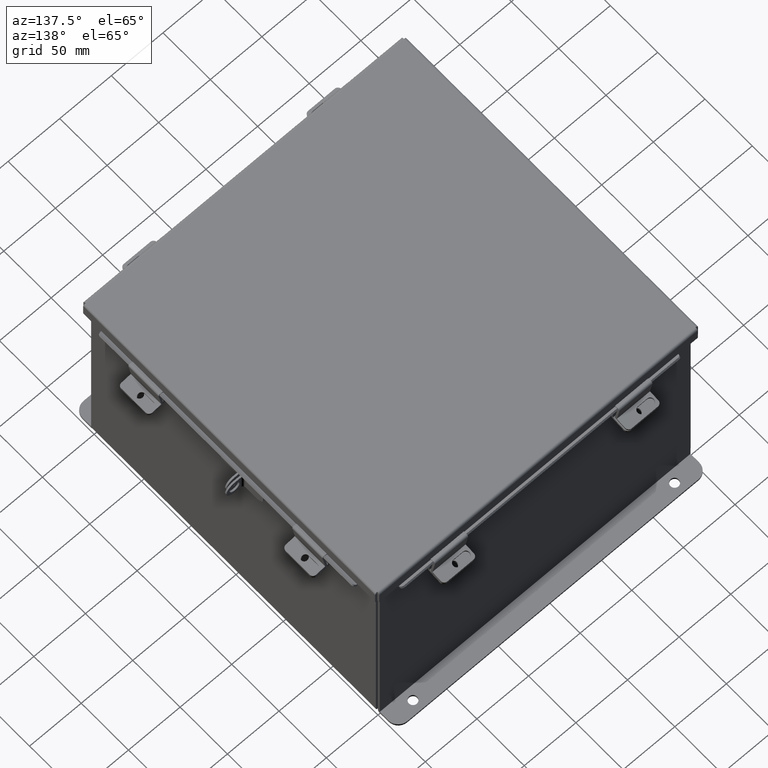
[diagram: clean part render]
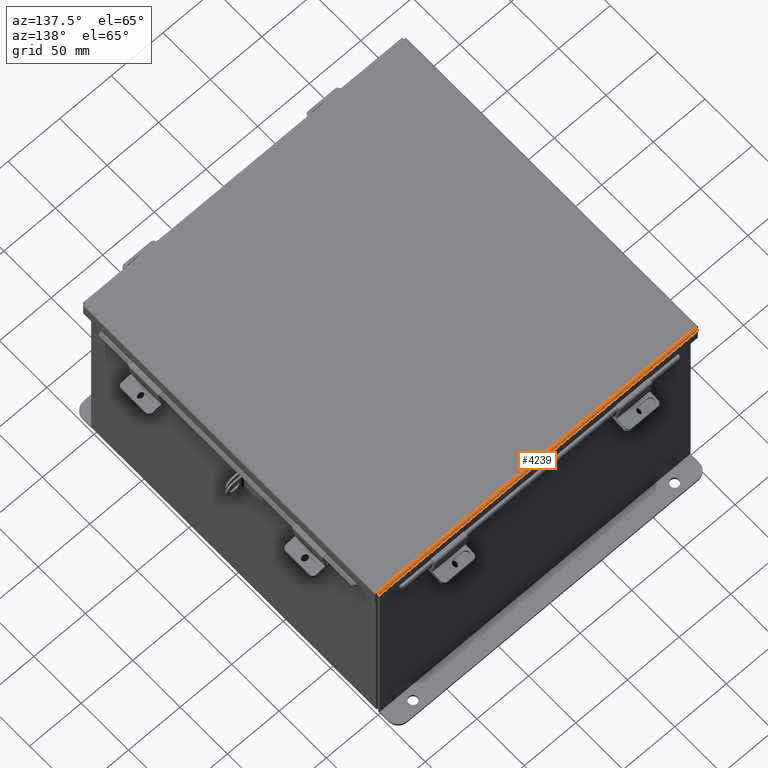
[diagram: same view with one face highlighted and labeled with its STEP entity id]
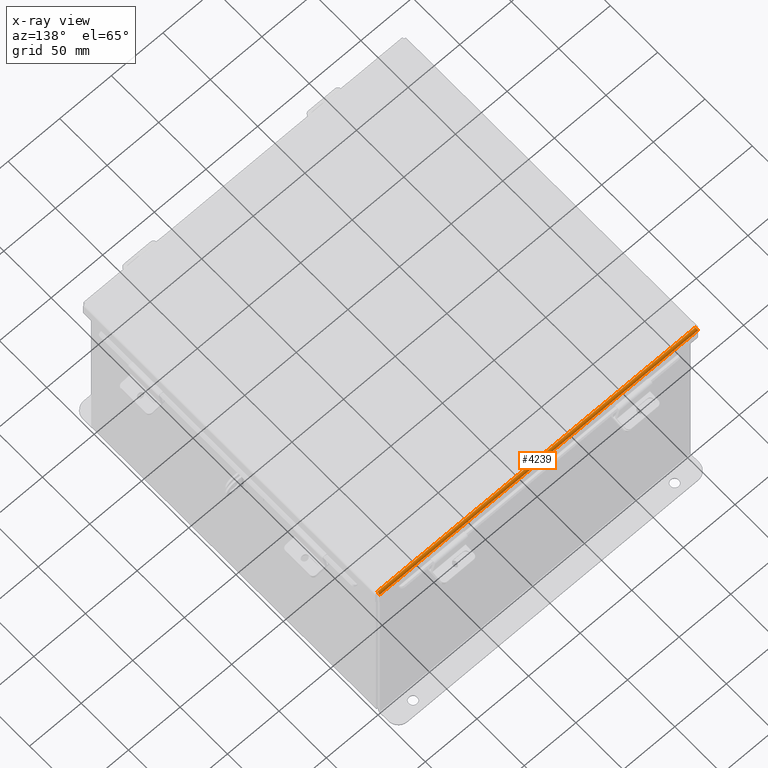
[diagram: x-ray of the same camera — body ghosted, the highlighted face saturated]
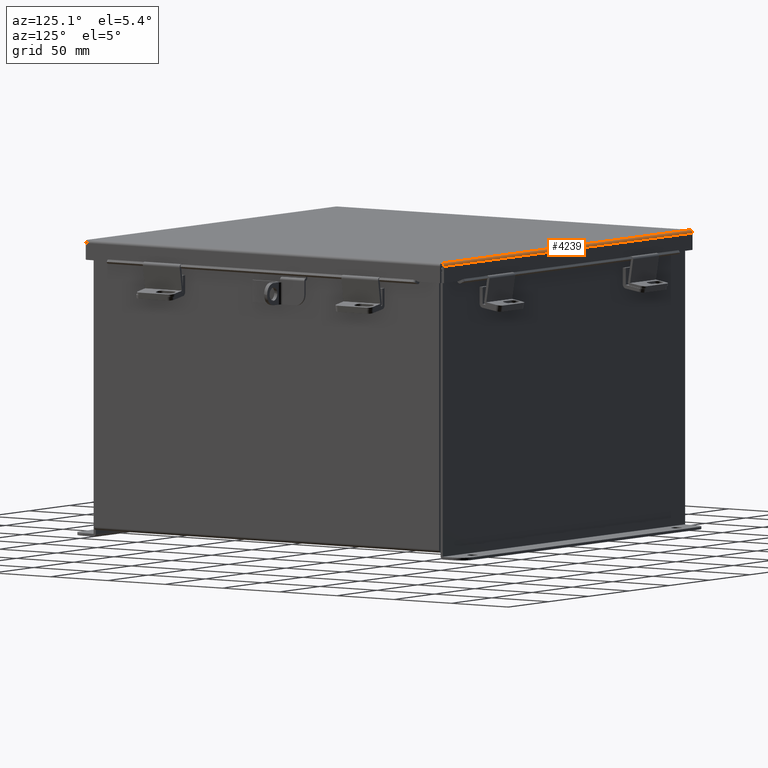
[diagram: same view with one face highlighted and labeled with its STEP entity id]
A machine part, auxiliary view. The second image highlights one B-rep face of the part: STEP entity #4239.
The next image is the same camera in x-ray: the body ghosted, the highlighted face saturated — about 0% of this face is hidden behind the body in this view.
A second angle (auxiliary view) of the same face is appended — the face is thin or edge-on in the first view.
In plain terms, the highlighted cylindrical surface (edge-blend (fillet) strip) has radius 2.2276 mm, axis along (1, -0, 0).
Its self-contained STEP definition (entity closure, byte-faithful):
#188 = LINE ( 'NONE', #15504, #17628 ) ;
#626 = FACE_OUTER_BOUND ( 'NONE', #4209, .T. ) ;
#961 = B_SPLINE_CURVE_WITH_KNOTS ( 'NONE', 3,
 ( #9638, #1384, #2795, #12368, #4202, #13769, #5585, #15143, #6957, #16551 ),
 .UNSPECIFIED., .F., .F.,
 ( 4, 2, 2, 2, 4 ),
 ( 0.0000000000000000000, 0.2500000000000000000, 0.5000000000000000000, 0.7500000000000000000, 1.000000000000000000 ),
 .UNSPECIFIED. ) ;
#1058 = AXIS2_PLACEMENT_3D ( 'NONE', #3737, #11926, #9184 ) ;
#1384 = CARTESIAN_POINT ( 'NONE',  ( -6.073984854505791700, 6.156249999999999100, 0.001520096845007091700 ) ) ;
#1416 = CARTESIAN_POINT ( 'NONE',  ( 6.068550000000000100, 6.068550000000000100, -0.07469999999999993300 ) ) ;
#1502 = CARTESIAN_POINT ( 'NONE',  ( 6.068550000000000100, 6.068550000000000100, -0.07469999999999993300 ) ) ;
#2201 = EDGE_CURVE ( 'NONE', #16120, #10522, #10353, .T. ) ;
#2308 = B_SPLINE_CURVE_WITH_KNOTS ( 'NONE', 3,
 ( #1502, #11106, #2885, #12472, #4315, #13858, #5673, #15257, #7054, #16630 ),
 .UNSPECIFIED., .F., .F.,
 ( 4, 2, 2, 2, 4 ),
 ( 0.0000000000000000000, 0.2500000000000000000, 0.5000000000000000000, 0.7500000000000000000, 1.000000000000000000 ),
 .UNSPECIFIED. ) ;
#2340 = CARTESIAN_POINT ( 'NONE',  ( -6.068550000000000100, 6.068550000000000100, -0.07469999999999993300 ) ) ;
#2795 = CARTESIAN_POINT ( 'NONE',  ( -6.073490776823450500, 6.153967403743811500, -0.009955289458309056500 ) ) ;
#2885 = CARTESIAN_POINT ( 'NONE',  ( 6.069538155364688800, 6.091505289458310400, -0.07241740374381121200 ) ) ;
#3194 = DIRECTION ( 'NONE',  ( 1.000000000000000000, 0.0000000000000000000, 0.0000000000000000000 ) ) ;
#3737 = CARTESIAN_POINT ( 'NONE',  ( -6.074478932188137400, 6.068550000000000100, 0.01300000000000016400 ) ) ;
#4202 = CARTESIAN_POINT ( 'NONE',  ( -6.072008543776413500, 6.138680782078321100, -0.04089574734180010500 ) ) ;
#4209 = EDGE_LOOP ( 'NONE', ( #6839, #14101, #5906, #17085 ) ) ;
#4239 = ADVANCED_FACE ( 'NONE', ( #626 ), #7533, .T. ) ;
#4315 = CARTESIAN_POINT ( 'NONE',  ( 6.071020388411724000, 6.122445747341799900, -0.05713078207832041800 ) ) ;
#4450 = VERTEX_POINT ( 'NONE', #1416 ) ;
#5516 = EDGE_CURVE ( 'NONE', #4450, #10522, #2308, .T. ) ;
#5585 = CARTESIAN_POINT ( 'NONE',  ( -6.070526310729379200, 6.112717384578528100, -0.06363106625866837800 ) ) ;
#5673 = CARTESIAN_POINT ( 'NONE',  ( 6.072502621458759200, 6.145181066258667900, -0.03116738457852800300 ) ) ;
#5906 = ORIENTED_EDGE ( 'NONE', *, *, #2201, .T. ) ;
#6760 = VECTOR ( 'NONE', #11840, 39.37007874015748100 ) ;
#6839 = ORIENTED_EDGE ( 'NONE', *, *, #9747, .F. ) ;
#6957 = CARTESIAN_POINT ( 'NONE',  ( -6.069044077682344900, 6.080029903154993100, -0.07469999999999994700 ) ) ;
#7054 = CARTESIAN_POINT ( 'NONE',  ( 6.073984854505791700, 6.156250000000000000, 0.001520096845007091700 ) ) ;
#7533 = CYLINDRICAL_SURFACE ( 'NONE', #1058, 0.08770000000000026400 ) ;
#7588 = EDGE_CURVE ( 'NONE', #16120, #10001, #961, .T. ) ;
#9184 = DIRECTION ( 'NONE',  ( 0.0000000000000000000, 1.000000000000000000, -4.477801015840783100E-015 ) ) ;
#9638 = CARTESIAN_POINT ( 'NONE',  ( -6.074478932188137400, 6.156250000000000000, 0.01299999999999978100 ) ) ;
#9747 = EDGE_CURVE ( 'NONE', #10001, #4450, #188, .T. ) ;
#10001 = VERTEX_POINT ( 'NONE', #2340 ) ;
#10353 = LINE ( 'NONE', #11947, #6760 ) ;
#10522 = VERTEX_POINT ( 'NONE', #14443 ) ;
#11106 = CARTESIAN_POINT ( 'NONE',  ( 6.069044077682344900, 6.080029903154992300, -0.07469999999999994700 ) ) ;
#11840 = DIRECTION ( 'NONE',  ( 1.000000000000000000, -2.487713722829918300E-032, 1.089533968265403200E-046 ) ) ;
#11926 = DIRECTION ( 'NONE',  ( -1.000000000000000000, -0.0000000000000000000, -0.0000000000000000000 ) ) ;
#11947 = CARTESIAN_POINT ( 'NONE',  ( 6.156249999999998200, 6.156250000000000000, 0.01299999999999978100 ) ) ;
#12368 = CARTESIAN_POINT ( 'NONE',  ( -6.072502621458756500, 6.145181066258666100, -0.03116738457852799900 ) ) ;
#12472 = CARTESIAN_POINT ( 'NONE',  ( 6.070526310729377400, 6.112717384578525400, -0.06363106625866835100 ) ) ;
#13769 = CARTESIAN_POINT ( 'NONE',  ( -6.071020388411725800, 6.122445747341799000, -0.05713078207832041800 ) ) ;
#13858 = CARTESIAN_POINT ( 'NONE',  ( 6.072008543776413500, 6.138680782078321100, -0.04089574734180011200 ) ) ;
#14101 = ORIENTED_EDGE ( 'NONE', *, *, #7588, .F. ) ;
#14443 = CARTESIAN_POINT ( 'NONE',  ( 6.074478932188137400, 6.156250000000000000, 0.01299999999999977400 ) ) ;
#15143 = CARTESIAN_POINT ( 'NONE',  ( -6.069538155364689700, 6.091505289458309500, -0.07241740374381121200 ) ) ;
#15257 = CARTESIAN_POINT ( 'NONE',  ( 6.073490776823449600, 6.153967403743811500, -0.009955289458309054700 ) ) ;
#15504 = CARTESIAN_POINT ( 'NONE',  ( -6.074478932188137400, 6.068550000000000100, -0.07469999999999993300 ) ) ;
#16025 = CARTESIAN_POINT ( 'NONE',  ( -6.074478932188137400, 6.156250000000000000, 0.01299999999999978100 ) ) ;
#16120 = VERTEX_POINT ( 'NONE', #16025 ) ;
#16551 = CARTESIAN_POINT ( 'NONE',  ( -6.068550000000000100, 6.068550000000000100, -0.07469999999999993300 ) ) ;
#16630 = CARTESIAN_POINT ( 'NONE',  ( 6.074478932188137400, 6.156250000000000000, 0.01299999999999977400 ) ) ;
#17085 = ORIENTED_EDGE ( 'NONE', *, *, #5516, .F. ) ;
#17628 = VECTOR ( 'NONE', #3194, 39.37007874015748100 ) ;